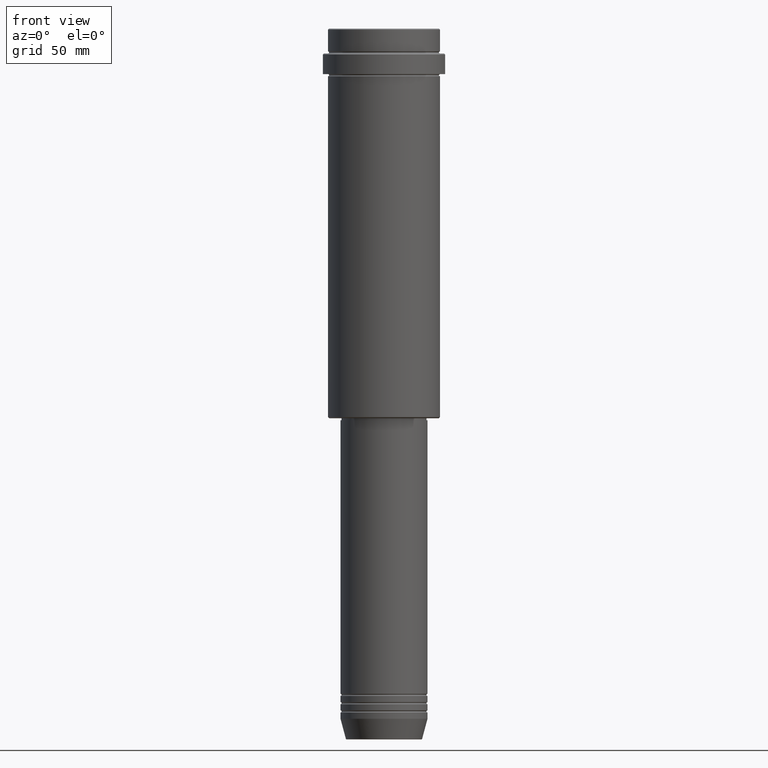
[diagram: clean part render]
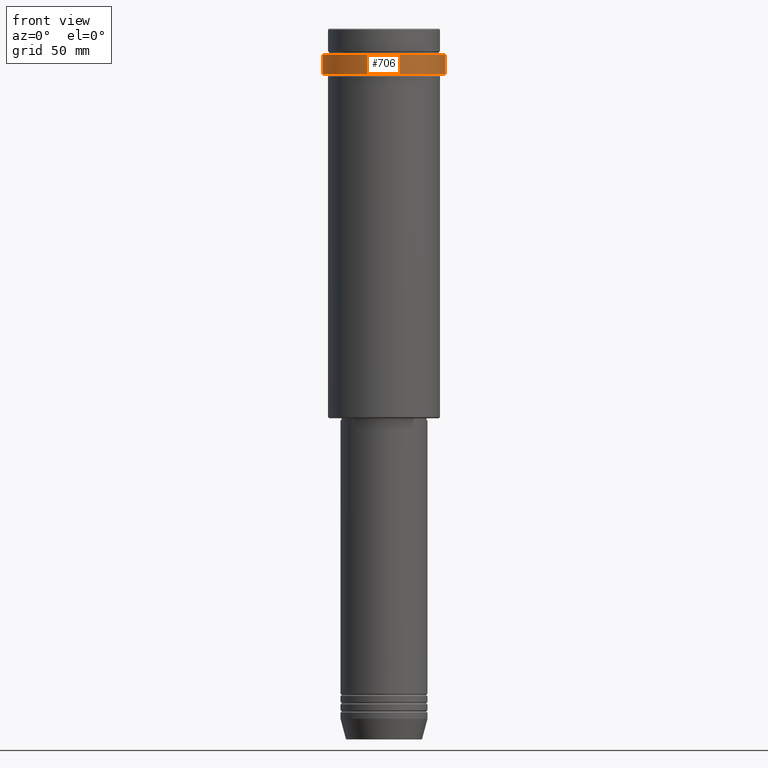
[diagram: same view with one face highlighted and labeled with its STEP entity id]
A machine part, front view. The second image highlights one B-rep face of the part: STEP entity #706.
In plain terms, the highlighted cylindrical surface (partial cylindrical patch) has radius 29.5 mm, axis along (-0, -0, 1).
Its self-contained STEP definition (entity closure, byte-faithful):
#27 = CARTESIAN_POINT ( 'NONE',  ( 29.49999999999999645, 0.000000000000000000, -22.00000000000000711 ) ) ;
#45 = VERTEX_POINT ( 'NONE', #27 ) ;
#66 = ORIENTED_EDGE ( 'NONE', *, *, #278, .T. ) ;
#77 = CARTESIAN_POINT ( 'NONE',  ( 0.000000000000000000, 0.000000000000000000, -12.50000000000000355 ) ) ;
#78 = CIRCLE ( 'NONE', #445, 29.49999999999999645 ) ;
#81 = DIRECTION ( 'NONE',  ( 1.000000000000000000, 0.000000000000000000, 0.000000000000000000 ) ) ;
#103 = CARTESIAN_POINT ( 'NONE',  ( 29.50000000000000000, 0.000000000000000000, -12.50000000000000355 ) ) ;
#278 = EDGE_CURVE ( 'NONE', #1271, #1316, #343, .T. ) ;
#343 = CIRCLE ( 'NONE', #648, 29.50000000000000000 ) ;
#347 = VECTOR ( 'NONE', #1222, 1000.000000000000000 ) ;
#350 = CARTESIAN_POINT ( 'NONE',  ( 29.50000000000000000, 0.000000000000000000, 0.000000000000000000 ) ) ;
#380 = DIRECTION ( 'NONE',  ( 1.000000000000000000, 0.000000000000000000, 0.000000000000000000 ) ) ;
#413 = CARTESIAN_POINT ( 'NONE',  ( 0.000000000000000000, 0.000000000000000000, 0.000000000000000000 ) ) ;
#445 = AXIS2_PLACEMENT_3D ( 'NONE', #874, #1408, #550 ) ;
#448 = EDGE_LOOP ( 'NONE', ( #636, #669, #722, #66 ) ) ;
#469 = LINE ( 'NONE', #350, #484 ) ;
#484 = VECTOR ( 'NONE', #1358, 1000.000000000000000 ) ;
#492 = CARTESIAN_POINT ( 'NONE',  ( -29.50000000000000000, 3.612708057484691604E-15, 0.000000000000000000 ) ) ;
#516 = VERTEX_POINT ( 'NONE', #792 ) ;
#550 = DIRECTION ( 'NONE',  ( 1.000000000000000000, 0.000000000000000000, 0.000000000000000000 ) ) ;
#573 = EDGE_CURVE ( 'NONE', #45, #1271, #469, .T. ) ;
#636 = ORIENTED_EDGE ( 'NONE', *, *, #943, .F. ) ;
#648 = AXIS2_PLACEMENT_3D ( 'NONE', #77, #1138, #380 ) ;
#652 = CARTESIAN_POINT ( 'NONE',  ( -29.50000000000000000, 3.612708057484691604E-15, -12.50000000000000355 ) ) ;
#669 = ORIENTED_EDGE ( 'NONE', *, *, #1242, .T. ) ;
#706 = ADVANCED_FACE ( 'NONE', ( #820 ), #1390, .T. ) ;
#722 = ORIENTED_EDGE ( 'NONE', *, *, #573, .T. ) ;
#792 = CARTESIAN_POINT ( 'NONE',  ( -29.49999999999999645, 3.612708057484690815E-15, -22.00000000000000711 ) ) ;
#820 = FACE_OUTER_BOUND ( 'NONE', #448, .T. ) ;
#874 = CARTESIAN_POINT ( 'NONE',  ( 0.000000000000000000, 0.000000000000000000, -22.00000000000000711 ) ) ;
#904 = LINE ( 'NONE', #492, #347 ) ;
#943 = EDGE_CURVE ( 'NONE', #516, #1316, #904, .T. ) ;
#1080 = AXIS2_PLACEMENT_3D ( 'NONE', #413, #1272, #81 ) ;
#1138 = DIRECTION ( 'NONE',  ( 0.000000000000000000, 0.000000000000000000, -1.000000000000000000 ) ) ;
#1222 = DIRECTION ( 'NONE',  ( -0.000000000000000000, -0.000000000000000000, 1.000000000000000000 ) ) ;
#1242 = EDGE_CURVE ( 'NONE', #516, #45, #78, .T. ) ;
#1271 = VERTEX_POINT ( 'NONE', #103 ) ;
#1272 = DIRECTION ( 'NONE',  ( -0.000000000000000000, -0.000000000000000000, 1.000000000000000000 ) ) ;
#1316 = VERTEX_POINT ( 'NONE', #652 ) ;
#1358 = DIRECTION ( 'NONE',  ( -0.000000000000000000, -0.000000000000000000, 1.000000000000000000 ) ) ;
#1390 = CYLINDRICAL_SURFACE ( 'NONE', #1080, 29.50000000000000000 ) ;
#1408 = DIRECTION ( 'NONE',  ( -0.000000000000000000, -0.000000000000000000, 1.000000000000000000 ) ) ;